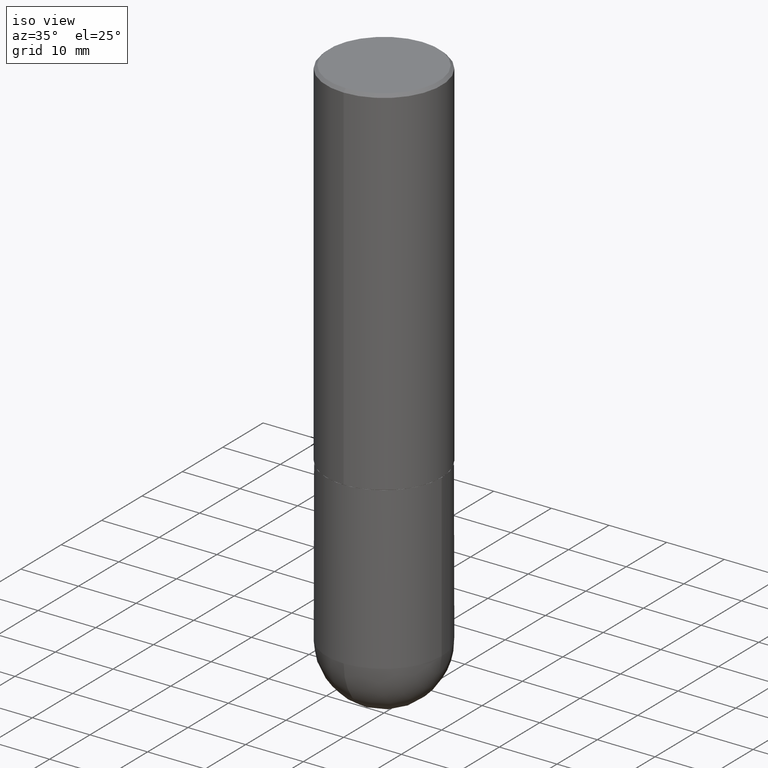
[diagram: clean part render]
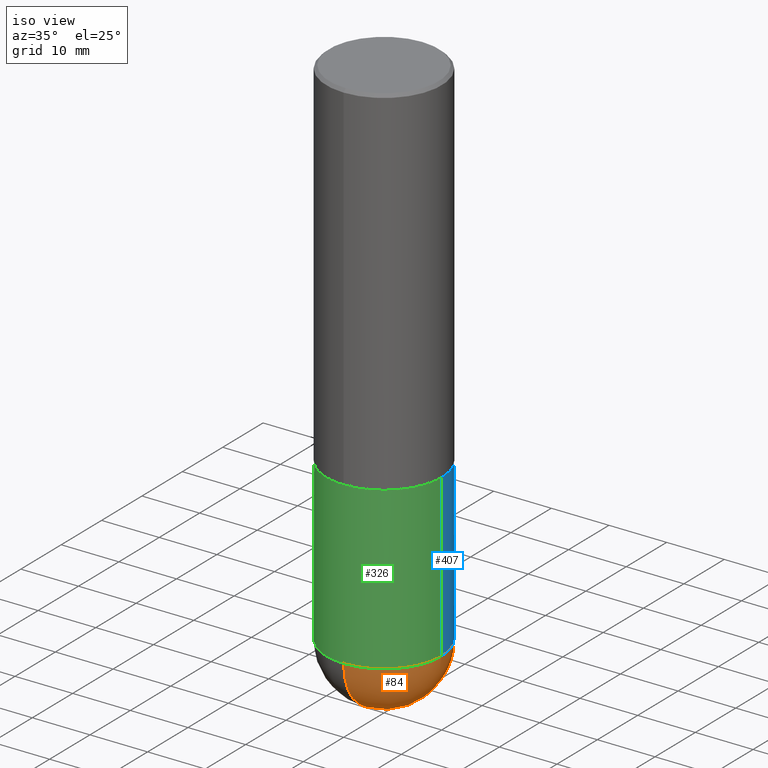
[diagram: same view with three faces highlighted in distinct colors, each labeled with its STEP entity id]
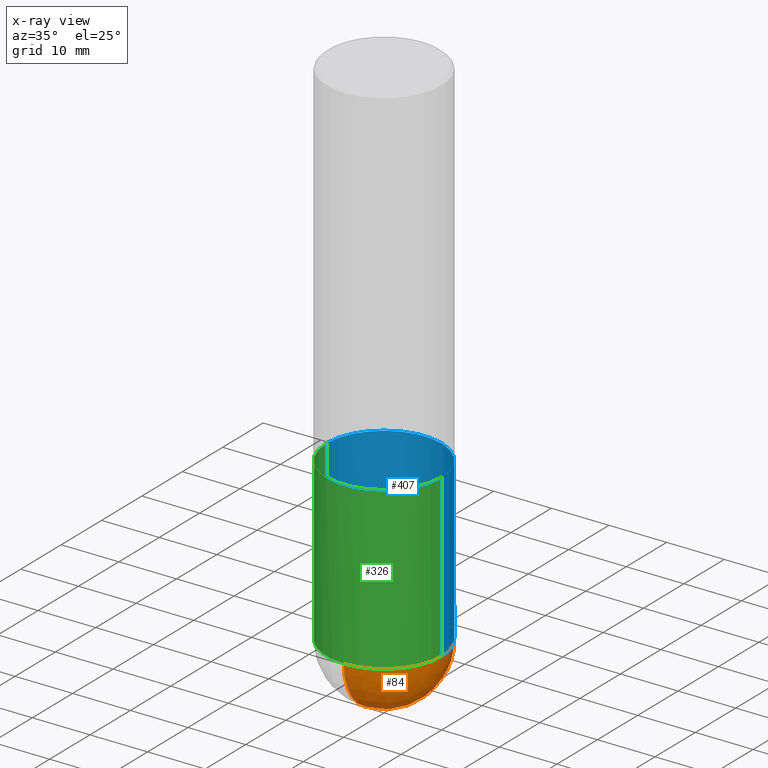
[diagram: x-ray of the same camera — body ghosted, the three highlighted faces saturated]
A machine part, iso view with three faces highlighted in distinct colors.
The next image is the same camera in x-ray (body ghosted, the three faces saturated) — at least one of them is partly hidden behind the body in this view.
Their STEP definitions:

[orange] entity #84 — the highlighted spherical surface has radius 10 mm.
#6 = FACE_OUTER_BOUND ( 'NONE', #104, .T. ) ;
#18 = AXIS2_PLACEMENT_3D ( 'NONE', #195, #69, #173 ) ;
#21 = EDGE_CURVE ( 'NONE', #47, #130, #242, .T. ) ;
#34 = DIRECTION ( 'NONE',  ( 6.982962677686265133E-15, 1.000000000000000000, 0.000000000000000000 ) ) ;
#35 = AXIS2_PLACEMENT_3D ( 'NONE', #245, #159, #273 ) ;
#41 = CARTESIAN_POINT ( 'NONE',  ( 9.313524860439493426E-29, -1.419603722692429674E-14, -3.937000000000000277 ) ) ;
#47 = VERTEX_POINT ( 'NONE', #41 ) ;
#50 = CIRCLE ( 'NONE', #100, 0.3937000000000001054 ) ;
#57 = AXIS2_PLACEMENT_3D ( 'NONE', #352, #97, #34 ) ;
#69 = DIRECTION ( 'NONE',  ( -1.000000000000000000, 7.105427357601001070E-15, -4.926315508542082329E-29 ) ) ;
#84 = ADVANCED_FACE ( 'NONE', ( #6 ), #181, .T. ) ;
#85 = ORIENTED_EDGE ( 'NONE', *, *, #349, .F. ) ;
#88 = DIRECTION ( 'NONE',  ( 6.982962677686265922E-15, 1.000000000000000000, -4.163344669033671690E-15 ) ) ;
#97 = DIRECTION ( 'NONE',  ( 1.000000000000000000, -6.982962677686265922E-15, 4.883557194083112340E-29 ) ) ;
#100 = AXIS2_PLACEMENT_3D ( 'NONE', #241, #280, #371 ) ;
#104 = EDGE_LOOP ( 'NONE', ( #85, #214, #116, #317 ) ) ;
#116 = ORIENTED_EDGE ( 'NONE', *, *, #300, .F. ) ;
#126 = CIRCLE ( 'NONE', #35, 0.3937000000000001054 ) ;
#130 = VERTEX_POINT ( 'NONE', #161 ) ;
#150 = EDGE_CURVE ( 'NONE', #333, #291, #126, .T. ) ;
#159 = DIRECTION ( 'NONE',  ( -2.445468806185136597E-29, 3.491481338843145583E-15, 1.000000000000000000 ) ) ;
#161 = CARTESIAN_POINT ( 'NONE',  ( 2.749192406205169202E-15, 0.3936999999999876709, -3.543300000000000782 ) ) ;
#173 = DIRECTION ( 'NONE',  ( -7.105427357600999492E-15, -1.000000000000000000, 0.000000000000000000 ) ) ;
#181 = SPHERICAL_SURFACE ( 'NONE', #249, 0.3937000000000003830 ) ;
#195 = CARTESIAN_POINT ( 'NONE',  ( 8.333909843041907822E-29, -1.284554819606296579E-14, -3.543299999999999894 ) ) ;
#214 = ORIENTED_EDGE ( 'NONE', *, *, #21, .T. ) ;
#241 = CARTESIAN_POINT ( 'NONE',  ( 8.665029620955792948E-29, -1.237136582792291707E-14, -3.543299999999999450 ) ) ;
#242 = CIRCLE ( 'NONE', #57, 0.3937000000000003830 ) ;
#245 = CARTESIAN_POINT ( 'NONE',  ( 8.665029620955792948E-29, -1.237136582792291707E-14, -3.543299999999999450 ) ) ;
#249 = AXIS2_PLACEMENT_3D ( 'NONE', #304, #341, #88 ) ;
#259 = CIRCLE ( 'NONE', #18, 0.3937000000000003830 ) ;
#273 = DIRECTION ( 'NONE',  ( 1.000000000000000000, -6.982962677686266711E-15, 0.000000000000000000 ) ) ;
#277 = CARTESIAN_POINT ( 'NONE',  ( 0.3937000000000001054, -1.319605372015766376E-14, -3.543299999999999450 ) ) ;
#280 = DIRECTION ( 'NONE',  ( -2.445468806185136597E-29, 3.491481338843145583E-15, 1.000000000000000000 ) ) ;
#291 = VERTEX_POINT ( 'NONE', #277 ) ;
#300 = EDGE_CURVE ( 'NONE', #291, #130, #50, .T. ) ;
#304 = CARTESIAN_POINT ( 'NONE',  ( 8.333909843041907822E-29, -1.284554819606296579E-14, -3.543299999999999894 ) ) ;
#317 = ORIENTED_EDGE ( 'NONE', *, *, #150, .F. ) ;
#333 = VERTEX_POINT ( 'NONE', #384 ) ;
#341 = DIRECTION ( 'NONE',  ( -1.000000000000000000, 6.982962677686265922E-15, -4.883557194083112340E-29 ) ) ;
#349 = EDGE_CURVE ( 'NONE', #47, #333, #259, .T. ) ;
#352 = CARTESIAN_POINT ( 'NONE',  ( 8.333909843041907822E-29, -1.284554819606296579E-14, -3.543299999999999894 ) ) ;
#371 = DIRECTION ( 'NONE',  ( 1.000000000000000000, -6.982962677686266711E-15, 0.000000000000000000 ) ) ;
#384 = CARTESIAN_POINT ( 'NONE',  ( -2.797406750687430773E-15, -0.3937000000000128175, -3.543299999999997674 ) ) ;

[blue] entity #407 — the highlighted cylindrical surface (partial cylindrical patch) has radius 10 mm, axis along (-0, 0, 1).
#7 = VERTEX_POINT ( 'NONE', #138 ) ;
#8 = DIRECTION ( 'NONE',  ( 1.000000000000000000, -6.982962677686267499E-15, 0.000000000000000000 ) ) ;
#11 = VECTOR ( 'NONE', #96, 39.37007874015748143 ) ;
#25 = CARTESIAN_POINT ( 'NONE',  ( -0.3937000000000000499, -7.649454563265061811E-15, -2.440900000000000070 ) ) ;
#28 = LINE ( 'NONE', #158, #412 ) ;
#50 = CIRCLE ( 'NONE', #100, 0.3937000000000001054 ) ;
#55 = DIRECTION ( 'NONE',  ( 1.000000000000000000, -6.982962677686266711E-15, 0.000000000000000000 ) ) ;
#64 = DIRECTION ( 'NONE',  ( -2.445468806185136597E-29, 3.491481338843145583E-15, 1.000000000000000000 ) ) ;
#96 = DIRECTION ( 'NONE',  ( -2.445468806185136877E-29, 3.491481338843145188E-15, 1.000000000000000000 ) ) ;
#100 = AXIS2_PLACEMENT_3D ( 'NONE', #241, #280, #371 ) ;
#127 = DIRECTION ( 'NONE',  ( -2.445468806185136597E-29, 3.491481338843145583E-15, 1.000000000000000000 ) ) ;
#130 = VERTEX_POINT ( 'NONE', #161 ) ;
#138 = CARTESIAN_POINT ( 'NONE',  ( 0.3937000000000000499, -1.127154920618731776E-14, -2.440900000000000070 ) ) ;
#140 = CYLINDRICAL_SURFACE ( 'NONE', #211, 0.3937000000000001054 ) ;
#158 = CARTESIAN_POINT ( 'NONE',  ( -0.3937000000000001054, 2.797406750687515181E-15, -1.936584745033357016E-29 ) ) ;
#161 = CARTESIAN_POINT ( 'NONE',  ( 2.749192406205169202E-15, 0.3936999999999876709, -3.543300000000000782 ) ) ;
#166 = ORIENTED_EDGE ( 'NONE', *, *, #279, .T. ) ;
#191 = EDGE_CURVE ( 'NONE', #130, #275, #342, .T. ) ;
#196 = CIRCLE ( 'NONE', #250, 0.3937000000000000499 ) ;
#211 = AXIS2_PLACEMENT_3D ( 'NONE', #351, #64, #381 ) ;
#213 = ORIENTED_EDGE ( 'NONE', *, *, #356, .F. ) ;
#226 = FACE_OUTER_BOUND ( 'NONE', #321, .T. ) ;
#241 = CARTESIAN_POINT ( 'NONE',  ( 8.665029620955792948E-29, -1.237136582792291707E-14, -3.543299999999999450 ) ) ;
#248 = CARTESIAN_POINT ( 'NONE',  ( -0.3937000000000001054, -7.649454563265064966E-15, -3.543299999999999450 ) ) ;
#250 = AXIS2_PLACEMENT_3D ( 'NONE', #350, #289, #8 ) ;
#262 = VERTEX_POINT ( 'NONE', #25 ) ;
#275 = VERTEX_POINT ( 'NONE', #248 ) ;
#277 = CARTESIAN_POINT ( 'NONE',  ( 0.3937000000000001054, -1.319605372015766376E-14, -3.543299999999999450 ) ) ;
#279 = EDGE_CURVE ( 'NONE', #275, #262, #28, .T. ) ;
#280 = DIRECTION ( 'NONE',  ( -2.445468806185136597E-29, 3.491481338843145583E-15, 1.000000000000000000 ) ) ;
#285 = ORIENTED_EDGE ( 'NONE', *, *, #300, .T. ) ;
#289 = DIRECTION ( 'NONE',  ( -2.445468806185136597E-29, 3.491481338843145583E-15, 1.000000000000000000 ) ) ;
#291 = VERTEX_POINT ( 'NONE', #277 ) ;
#300 = EDGE_CURVE ( 'NONE', #291, #130, #50, .T. ) ;
#314 = DIRECTION ( 'NONE',  ( -2.445468806185136877E-29, 3.491481338843145188E-15, 1.000000000000000000 ) ) ;
#321 = EDGE_LOOP ( 'NONE', ( #397, #166, #213, #385, #285 ) ) ;
#332 = AXIS2_PLACEMENT_3D ( 'NONE', #379, #127, #55 ) ;
#334 = EDGE_CURVE ( 'NONE', #291, #7, #391, .T. ) ;
#342 = CIRCLE ( 'NONE', #332, 0.3937000000000001054 ) ;
#350 = CARTESIAN_POINT ( 'NONE',  ( 5.969144809017300159E-29, -8.522356799982234543E-15, -2.440900000000000070 ) ) ;
#351 = CARTESIAN_POINT ( 'NONE',  ( 0.000000000000000000, 0.000000000000000000, 0.000000000000000000 ) ) ;
#356 = EDGE_CURVE ( 'NONE', #7, #262, #196, .T. ) ;
#359 = CARTESIAN_POINT ( 'NONE',  ( 0.3937000000000001054, -2.749192406205084005E-15, 1.919750796630860452E-29 ) ) ;
#371 = DIRECTION ( 'NONE',  ( 1.000000000000000000, -6.982962677686266711E-15, 0.000000000000000000 ) ) ;
#379 = CARTESIAN_POINT ( 'NONE',  ( 8.665029620955792948E-29, -1.237136582792291707E-14, -3.543299999999999450 ) ) ;
#381 = DIRECTION ( 'NONE',  ( 1.000000000000000000, -6.982962677686266711E-15, 4.876176775795935793E-29 ) ) ;
#385 = ORIENTED_EDGE ( 'NONE', *, *, #334, .F. ) ;
#391 = LINE ( 'NONE', #359, #11 ) ;
#397 = ORIENTED_EDGE ( 'NONE', *, *, #191, .T. ) ;
#407 = ADVANCED_FACE ( 'NONE', ( #226 ), #140, .T. ) ;
#412 = VECTOR ( 'NONE', #314, 39.37007874015748143 ) ;

[green] entity #326 — the highlighted cylindrical surface (partial cylindrical patch) has radius 10 mm, axis along (-0, 0, 1).
#7 = VERTEX_POINT ( 'NONE', #138 ) ;
#11 = VECTOR ( 'NONE', #96, 39.37007874015748143 ) ;
#25 = CARTESIAN_POINT ( 'NONE',  ( -0.3937000000000000499, -7.649454563265061811E-15, -2.440900000000000070 ) ) ;
#28 = LINE ( 'NONE', #158, #412 ) ;
#35 = AXIS2_PLACEMENT_3D ( 'NONE', #245, #159, #273 ) ;
#54 = DIRECTION ( 'NONE',  ( -2.445468806185136597E-29, 3.491481338843145583E-15, 1.000000000000000000 ) ) ;
#59 = CARTESIAN_POINT ( 'NONE',  ( 5.969144809017300159E-29, -8.522356799982234543E-15, -2.440900000000000070 ) ) ;
#96 = DIRECTION ( 'NONE',  ( -2.445468806185136877E-29, 3.491481338843145188E-15, 1.000000000000000000 ) ) ;
#126 = CIRCLE ( 'NONE', #35, 0.3937000000000001054 ) ;
#131 = CYLINDRICAL_SURFACE ( 'NONE', #156, 0.3937000000000001054 ) ;
#138 = CARTESIAN_POINT ( 'NONE',  ( 0.3937000000000000499, -1.127154920618731776E-14, -2.440900000000000070 ) ) ;
#139 = ORIENTED_EDGE ( 'NONE', *, *, #279, .F. ) ;
#150 = EDGE_CURVE ( 'NONE', #333, #291, #126, .T. ) ;
#153 = CARTESIAN_POINT ( 'NONE',  ( 8.665029620955792948E-29, -1.237136582792291707E-14, -3.543299999999999450 ) ) ;
#156 = AXIS2_PLACEMENT_3D ( 'NONE', #382, #286, #319 ) ;
#158 = CARTESIAN_POINT ( 'NONE',  ( -0.3937000000000001054, 2.797406750687515181E-15, -1.936584745033357016E-29 ) ) ;
#159 = DIRECTION ( 'NONE',  ( -2.445468806185136597E-29, 3.491481338843145583E-15, 1.000000000000000000 ) ) ;
#167 = ORIENTED_EDGE ( 'NONE', *, *, #334, .T. ) ;
#170 = FACE_OUTER_BOUND ( 'NONE', #240, .T. ) ;
#182 = ORIENTED_EDGE ( 'NONE', *, *, #272, .F. ) ;
#184 = DIRECTION ( 'NONE',  ( 1.000000000000000000, -6.982962677686267499E-15, 0.000000000000000000 ) ) ;
#188 = CIRCLE ( 'NONE', #194, 0.3937000000000000499 ) ;
#194 = AXIS2_PLACEMENT_3D ( 'NONE', #59, #409, #184 ) ;
#219 = DIRECTION ( 'NONE',  ( 1.000000000000000000, -6.982962677686266711E-15, 0.000000000000000000 ) ) ;
#240 = EDGE_LOOP ( 'NONE', ( #139, #307, #392, #167, #182 ) ) ;
#245 = CARTESIAN_POINT ( 'NONE',  ( 8.665029620955792948E-29, -1.237136582792291707E-14, -3.543299999999999450 ) ) ;
#248 = CARTESIAN_POINT ( 'NONE',  ( -0.3937000000000001054, -7.649454563265064966E-15, -3.543299999999999450 ) ) ;
#262 = VERTEX_POINT ( 'NONE', #25 ) ;
#269 = EDGE_CURVE ( 'NONE', #275, #333, #372, .T. ) ;
#272 = EDGE_CURVE ( 'NONE', #262, #7, #188, .T. ) ;
#273 = DIRECTION ( 'NONE',  ( 1.000000000000000000, -6.982962677686266711E-15, 0.000000000000000000 ) ) ;
#275 = VERTEX_POINT ( 'NONE', #248 ) ;
#277 = CARTESIAN_POINT ( 'NONE',  ( 0.3937000000000001054, -1.319605372015766376E-14, -3.543299999999999450 ) ) ;
#279 = EDGE_CURVE ( 'NONE', #275, #262, #28, .T. ) ;
#286 = DIRECTION ( 'NONE',  ( -2.445468806185136597E-29, 3.491481338843145583E-15, 1.000000000000000000 ) ) ;
#291 = VERTEX_POINT ( 'NONE', #277 ) ;
#307 = ORIENTED_EDGE ( 'NONE', *, *, #269, .T. ) ;
#314 = DIRECTION ( 'NONE',  ( -2.445468806185136877E-29, 3.491481338843145188E-15, 1.000000000000000000 ) ) ;
#319 = DIRECTION ( 'NONE',  ( 1.000000000000000000, -6.982962677686266711E-15, 4.876176775795935793E-29 ) ) ;
#326 = ADVANCED_FACE ( 'NONE', ( #170 ), #131, .T. ) ;
#333 = VERTEX_POINT ( 'NONE', #384 ) ;
#334 = EDGE_CURVE ( 'NONE', #291, #7, #391, .T. ) ;
#354 = AXIS2_PLACEMENT_3D ( 'NONE', #153, #54, #219 ) ;
#359 = CARTESIAN_POINT ( 'NONE',  ( 0.3937000000000001054, -2.749192406205084005E-15, 1.919750796630860452E-29 ) ) ;
#372 = CIRCLE ( 'NONE', #354, 0.3937000000000001054 ) ;
#382 = CARTESIAN_POINT ( 'NONE',  ( 0.000000000000000000, 0.000000000000000000, 0.000000000000000000 ) ) ;
#384 = CARTESIAN_POINT ( 'NONE',  ( -2.797406750687430773E-15, -0.3937000000000128175, -3.543299999999997674 ) ) ;
#391 = LINE ( 'NONE', #359, #11 ) ;
#392 = ORIENTED_EDGE ( 'NONE', *, *, #150, .T. ) ;
#409 = DIRECTION ( 'NONE',  ( -2.445468806185136597E-29, 3.491481338843145583E-15, 1.000000000000000000 ) ) ;
#412 = VECTOR ( 'NONE', #314, 39.37007874015748143 ) ;